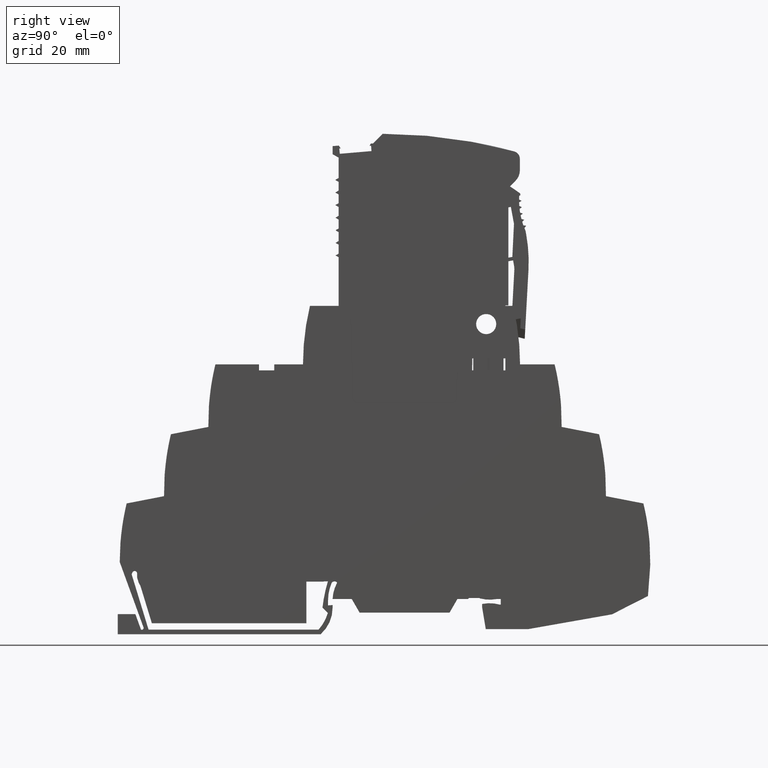
[diagram: clean part render]
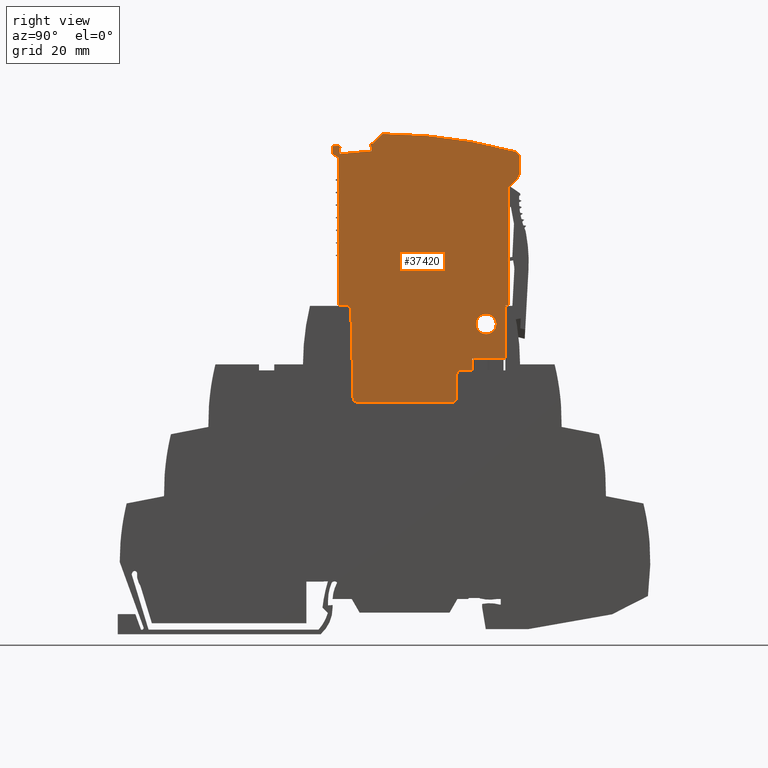
[diagram: same view with one face highlighted and labeled with its STEP entity id]
A machine part, right view. The second image highlights one B-rep face of the part: STEP entity #37420.
In plain terms, the highlighted planar face has unit normal (1, -0, 0).
Its self-contained STEP definition (entity closure, byte-faithful):
#4710=CARTESIAN_POINT('',(1.5027634443628,81.6300278559835,
6.30000004653682));
#4720=VERTEX_POINT('',#4710);
#4750=CARTESIAN_POINT('',(1.50276199735806,81.630026408979,
6.30000004653682));
#4760=DIRECTION('',(0.707106781186548,0.707106781186547,
8.99675992685931E-10));
#4770=VECTOR('',#4760,1.);
#4780=LINE('',#4750,#4770);
#4790=CARTESIAN_POINT('',(2.91213288443591,83.0393972960566,
6.30000004833));
#4800=VERTEX_POINT('',#4790);
#4810=EDGE_CURVE('',#4720,#4800,#4780,.T.);
#6490=CARTESIAN_POINT('',(0.82369244772057,47.7986343143926,
6.30000004567281));
#6500=VERTEX_POINT('',#6490);
#6530=CARTESIAN_POINT('',(0.823692453333029,47.7986349575081,
6.30000004567281));
#6540=DIRECTION('',(0.0087266347785965,0.999961922197761,
1.11032298385166E-11));
#6550=VECTOR('',#6540,1.);
#6560=LINE('',#6530,#6550);
#6570=CARTESIAN_POINT('',(0.91543323909314,58.310968153533,
6.30000004578954));
#6580=VERTEX_POINT('',#6570);
#6590=EDGE_CURVE('',#6500,#6580,#6560,.T.);
#7360=CARTESIAN_POINT('',(0.,47.7986343961721,6.3000000446248));
#7370=DIRECTION('',(-0.999999999999995,9.92840027691511E-8,
-1.27233440234887E-9));
#7380=VECTOR('',#7370,1.);
#7390=LINE('',#7360,#7380);
#7400=CARTESIAN_POINT('',(-5.65384003677915,47.798634957508,
6.30000003743122));
#7410=VERTEX_POINT('',#7400);
#7420=EDGE_CURVE('',#6500,#7410,#7390,.T.);
#8260=CARTESIAN_POINT('',(-5.69398692084287,45.4986345962374,
6.30000003738014));
#8270=VERTEX_POINT('',#8260);
#8300=CARTESIAN_POINT('',(-5.69398692008819,45.4986346930015,
6.30000003738014));
#8310=DIRECTION('',(0.0174525057061637,0.999847693423641,
2.22057155310626E-11));
#8320=VECTOR('',#8310,1.);
#8330=LINE('',#8300,#8320);
#8340=EDGE_CURVE('',#8270,#7410,#8330,.T.);
#13800=CARTESIAN_POINT('',(-32.2143223474418,87.6620689228971,
6.30000000363741));
#13810=VERTEX_POINT('',#13800);
#13840=CARTESIAN_POINT('',(-32.2143484577651,0.,6.30000000363738));
#13850=DIRECTION('',(2.97852008862565E-7,0.999999999999956,
3.78967331631682E-16));
#13860=VECTOR('',#13850,1.);
#13870=LINE('',#13840,#13860);
#13880=CARTESIAN_POINT('',(-32.2143310897266,58.3109665443096,
6.3000000036374));
#13890=VERTEX_POINT('',#13880);
#13900=EDGE_CURVE('',#13890,#13810,#13870,.T.);
#34770=CARTESIAN_POINT('',(0.,58.3109707920224,6.3000000446248));
#34780=DIRECTION('',(0.999999999999991,1.31857899599019E-7,
1.27233440234888E-9));
#34790=VECTOR('',#34780,1.);
#34800=LINE('',#34770,#34790);
#34810=CARTESIAN_POINT('',(-30.8831239423302,58.3109667198385,
6.30000000533114));
#34820=VERTEX_POINT('',#34810);
#34830=EDGE_CURVE('',#13890,#34820,#34800,.T.);
#35030=CARTESIAN_POINT('',(-13.0403049895551,96.0690412262468,
6.30000002803317));
#35040=DIRECTION('',(-1.27233440234888E-9,-1.17062898166327E-24,1.));
#35050=DIRECTION('',(0.999999999999995,9.92840025734579E-8,
1.27233440234887E-9));
#35060=AXIS2_PLACEMENT_3D('',#35030,#35040,#35050);
#35070=PLANE('',#35060);
#35080=CARTESIAN_POINT('',(-2.89964321690515,54.6030366982365,
6.30000004093548));
#35090=DIRECTION('',(-8.27874684295384E-18,1.10352364417225E-9,-1.));
#35100=DIRECTION('',(0.207911690818063,-0.978147600733741,
-1.07940900662129E-9));
#35110=AXIS2_PLACEMENT_3D('',#35080,#35090,#35100);
#35120=CIRCLE('',#35110,2.);
#35130=CARTESIAN_POINT('',(-0.89964321690515,54.6030366982365,
6.30000004093548));
#35140=VERTEX_POINT('',#35130);
#35150=CARTESIAN_POINT('',(-4.89964321690515,54.6030366982365,
6.30000004093548));
#35160=VERTEX_POINT('',#35150);
#35170=EDGE_CURVE('',#35140,#35160,#35120,.T.);
#35180=ORIENTED_EDGE('',*,*,#35170,.T.);
#35190=EDGE_CURVE('',#35160,#35140,#35120,.T.);
#35200=ORIENTED_EDGE('',*,*,#35190,.T.);
#35210=EDGE_LOOP('',(#35200,#35180));
#35220=FACE_BOUND('',#35210,.T.);
#35230=CARTESIAN_POINT('',(0.,92.2265074258215,6.3000000446248));
#35240=DIRECTION('',(0.996387745687969,0.0849203170204144,
1.26773841424566E-9));
#35250=VECTOR('',#35240,1.);
#35260=LINE('',#35230,#35250);
#35270=CARTESIAN_POINT('',(-26.0398510780883,90.007178235669,
6.3000000114934));
#35280=VERTEX_POINT('',#35270);
#35290=CARTESIAN_POINT('',(-25.7688273458872,90.0302770958849,
6.30000001183823));
#35300=VERTEX_POINT('',#35290);
#35310=EDGE_CURVE('',#35280,#35300,#35260,.T.);
#35320=ORIENTED_EDGE('',*,*,#35310,.T.);
#35330=CARTESIAN_POINT('',(-68.257012075395,0.,6.29999995777905));
#35340=DIRECTION('',(-0.424650721006602,-0.905357258295626,
-5.40297695472702E-10));
#35350=VECTOR('',#35340,1.);
#35360=LINE('',#35330,#35350);
#35370=CARTESIAN_POINT('',(-25.829789102938,90.4550313170049,
6.30000001176067));
#35380=VERTEX_POINT('',#35370);
#35390=EDGE_CURVE('',#35380,#35280,#35360,.T.);
#35400=ORIENTED_EDGE('',*,*,#35390,.T.);
#35410=CARTESIAN_POINT('',(-6.59696852790767,-259.01613861369,
6.30000003623125));
#35420=DIRECTION('',(4.2914011530532E-18,1.1035235845829E-9,-1.));
#35430=DIRECTION('',(-0.0544140920450259,0.99851845580686,
1.10188866539066E-9));
#35440=AXIS2_PLACEMENT_3D('',#35410,#35420,#35430);
#35450=CIRCLE('',#35440,350.);
#35460=CARTESIAN_POINT('',(-25.3835324039076,90.4793048726777,
6.30000042190771));
#35470=VERTEX_POINT('',#35460);
#35480=EDGE_CURVE('',#35380,#35470,#35450,.T.);
#35490=ORIENTED_EDGE('',*,*,#35480,.F.);
#35500=CARTESIAN_POINT('',(-23.7561712545598,92.1066555594288,
6.30000001439901));
#35510=DIRECTION('',(-0.707109054248472,-0.707104508117316,
-8.99679235216046E-10));
#35520=VECTOR('',#35510,1.);
#35530=LINE('',#35500,#35520);
#35540=CARTESIAN_POINT('',(-23.4620154295483,92.400809493259,
6.30000012500318));
#35550=VERTEX_POINT('',#35540);
#35560=EDGE_CURVE('',#35550,#35470,#35530,.T.);
#35570=ORIENTED_EDGE('',*,*,#35560,.T.);
#35580=CARTESIAN_POINT('',(-23.5582147547322,-7.59914423517946,
6.30000001465087));
#35590=DIRECTION('',(-5.04620731356756E-18,-1.10352358808745E-9,1.));
#35600=DIRECTION('',(0.262397378243297,0.96495990377375,
1.06485601669704E-9));
#35610=AXIS2_PLACEMENT_3D('',#35580,#35590,#35600);
#35620=CIRCLE('',#35610,100.);
#35630=CARTESIAN_POINT('',(2.68152306959731,88.8968461421956,
6.30000012113647));
#35640=VERTEX_POINT('',#35630);
#35650=EDGE_CURVE('',#35640,#35550,#35620,.T.);
#35660=ORIENTED_EDGE('',*,*,#35650,.T.);
#35670=CARTESIAN_POINT('',(2.28792700223234,87.449406286535,
6.30000004753581));
#35680=DIRECTION('',(4.25831752161686E-18,1.10352358519E-9,-1.));
#35690=DIRECTION('',(1.,0.,4.25831752161686E-18));
#35700=AXIS2_PLACEMENT_3D('',#35670,#35680,#35690);
#35710=CIRCLE('',#35700,1.5);
#35720=CARTESIAN_POINT('',(3.78793249072631,87.4460008193443,
6.30000004944432));
#35730=VERTEX_POINT('',#35720);
#35740=EDGE_CURVE('',#35640,#35730,#35710,.T.);
#35750=ORIENTED_EDGE('',*,*,#35740,.F.);
#35760=CARTESIAN_POINT('',(3.89822846849755,0.,6.30000004958465));
#35770=DIRECTION('',(-0.00126130284980064,0.999999204557244,
-1.60479886757853E-12));
#35780=VECTOR('',#35770,1.);
#35790=LINE('',#35760,#35780);
#35800=CARTESIAN_POINT('',(3.79081945887381,85.1571247960008,
6.30000004944799));
#35810=VERTEX_POINT('',#35800);
#35820=EDGE_CURVE('',#35810,#35730,#35790,.T.);
#35830=ORIENTED_EDGE('',*,*,#35820,.T.);
#35840=CARTESIAN_POINT('',(0.790812540876146,85.1607176396161,
6.30000004563098));
#35850=DIRECTION('',(-4.25831752161686E-18,-1.10352358519E-9,1.));
#35860=DIRECTION('',(1.,0.,4.25831752161686E-18));
#35870=AXIS2_PLACEMENT_3D('',#35840,#35850,#35860);
#35880=CIRCLE('',#35870,3.);
#35890=EDGE_CURVE('',#4800,#35810,#35880,.T.);
#35900=ORIENTED_EDGE('',*,*,#35890,.T.);
#35910=ORIENTED_EDGE('',*,*,#4810,.T.);
#35920=CARTESIAN_POINT('',(1.50275273455216,0.,6.3000000465368));
#35930=DIRECTION('',(1.48925771131792E-7,0.999999999999989,
1.89483374648265E-16));
#35940=VECTOR('',#35930,1.);
#35950=LINE('',#35920,#35940);
#35960=CARTESIAN_POINT('',(1.50276286556278,58.3109681826894,
6.30000004653682));
#35970=VERTEX_POINT('',#35960);
#35980=EDGE_CURVE('',#35970,#4720,#35950,.T.);
#35990=ORIENTED_EDGE('',*,*,#35980,.T.);
#36000=CARTESIAN_POINT('',(0.,58.3109681080889,6.3000000446248));
#36010=DIRECTION('',(0.999999999999999,4.96422109530492E-8,
1.27233440234888E-9));
#36020=VECTOR('',#36010,1.);
#36030=LINE('',#36000,#36020);
#36040=EDGE_CURVE('',#6580,#35970,#36030,.T.);
#36050=ORIENTED_EDGE('',*,*,#36040,.T.);
#36060=ORIENTED_EDGE('',*,*,#6590,.T.);
#36070=ORIENTED_EDGE('',*,*,#7420,.F.);
#36080=ORIENTED_EDGE('',*,*,#8340,.T.);
#36090=CARTESIAN_POINT('',(0.,45.4986339341759,6.3000000446248));
#36100=DIRECTION('',(0.999999999999995,-9.92840029634401E-8,
1.27233440234887E-9));
#36110=VECTOR('',#36100,1.);
#36120=LINE('',#36090,#36110);
#36130=CARTESIAN_POINT('',(-7.64297974787529,45.4986346930013,
6.30000003490037));
#36140=VERTEX_POINT('',#36130);
#36150=EDGE_CURVE('',#36140,#8270,#36120,.T.);
#36160=ORIENTED_EDGE('',*,*,#36150,.T.);
#36170=CARTESIAN_POINT('',(-7.64297924124064,44.3986346930014,
6.30000003490037));
#36180=DIRECTION('',(1.51572422815737E-21,8.68357828728422E-20,-1.));
#36190=DIRECTION('',(-0.999847695156387,0.0174524064375057,
1.88079096131566E-37));
#36200=AXIS2_PLACEMENT_3D('',#36170,#36180,#36190);
#36210=CIRCLE('',#36200,1.1);
#36220=CARTESIAN_POINT('',(-8.74281170591264,44.4178323400825,
6.30000003350102));
#36230=VERTEX_POINT('',#36220);
#36240=EDGE_CURVE('',#36230,#36140,#36210,.T.);
#36250=ORIENTED_EDGE('',*,*,#36240,.T.);
#36260=CARTESIAN_POINT('',(-8.82119367783118,39.9273321763251,
6.30000003340129));
#36270=DIRECTION('',(0.0174524064372837,0.999847695156391,
2.22053296847798E-11));
#36280=VECTOR('',#36270,1.);
#36290=LINE('',#36260,#36280);
#36300=CARTESIAN_POINT('',(-8.82119367783119,39.9273321763251,
6.30000003340129));
#36310=VERTEX_POINT('',#36300);
#36320=EDGE_CURVE('',#36310,#36230,#36290,.T.);
#36330=ORIENTED_EDGE('',*,*,#36320,.T.);
#36340=CARTESIAN_POINT('',(-9.72105660347197,39.9430393421184,
6.30000003225637));
#36350=DIRECTION('',(-4.25831783639269E-18,-2.79679695932552E-23,1.));
#36360=DIRECTION('',(6.56784454970232E-6,-0.999999999978432,0.));
#36370=AXIS2_PLACEMENT_3D('',#36340,#36350,#36360);
#36380=CIRCLE('',#36370,0.9);
#36390=CARTESIAN_POINT('',(-9.72105364794497,39.0430393421184,
6.30000003225637));
#36400=VERTEX_POINT('',#36390);
#36410=EDGE_CURVE('',#36400,#36310,#36380,.T.);
#36420=ORIENTED_EDGE('',*,*,#36410,.T.);
#36430=CARTESIAN_POINT('',(0.,39.0430393421184,6.3000000446248));
#36440=DIRECTION('',(1.,0.,1.27233440234888E-9));
#36450=VECTOR('',#36440,1.);
#36460=LINE('',#36430,#36450);
#36470=CARTESIAN_POINT('',(-28.4302587167585,39.0430393421184,
6.300000008452));
#36480=VERTEX_POINT('',#36470);
#36490=EDGE_CURVE('',#36480,#36400,#36460,.T.);
#36500=ORIENTED_EDGE('',*,*,#36490,.T.);
#36510=CARTESIAN_POINT('',(-28.4302616897223,39.9430393421183,
6.300000008452));
#36520=DIRECTION('',(-2.58997426526211E-21,9.89071268123087E-20,1.));
#36530=DIRECTION('',(-0.999657324975578,-0.026176948307079,
-3.76158192263132E-37));
#36540=AXIS2_PLACEMENT_3D('',#36510,#36520,#36530);
#36550=CIRCLE('',#36540,0.9);
#36560=CARTESIAN_POINT('',(-29.3299532822003,39.9194800886416,
6.30000000730729));
#36570=VERTEX_POINT('',#36560);
#36580=EDGE_CURVE('',#36570,#36480,#36550,.T.);
#36590=ORIENTED_EDGE('',*,*,#36580,.T.);
#36600=CARTESIAN_POINT('',(-29.7835008092065,57.2397613629776,
6.30000000673023));
#36610=DIRECTION('',(0.0261769483078747,-0.999657324975557,
3.33058605425129E-11));
#36620=VECTOR('',#36610,1.);
#36630=LINE('',#36600,#36620);
#36640=CARTESIAN_POINT('',(-29.7835008092064,57.2397613629773,
6.30000000533114));
#36650=VERTEX_POINT('',#36640);
#36660=EDGE_CURVE('',#36650,#36570,#36630,.T.);
#36670=ORIENTED_EDGE('',*,*,#36660,.T.);
#36680=CARTESIAN_POINT('',(-30.8831238666795,57.2109667198385,
6.30000000533114));
#36690=DIRECTION('',(4.25831775433271E-18,2.42245071722835E-26,-1.));
#36700=DIRECTION('',(-5.68875048078218E-9,1.,0.));
#36710=AXIS2_PLACEMENT_3D('',#36680,#36690,#36700);
#36720=CIRCLE('',#36710,1.10000000000001);
#36730=EDGE_CURVE('',#34820,#36650,#36720,.T.);
#36740=ORIENTED_EDGE('',*,*,#36730,.T.);
#36750=ORIENTED_EDGE('',*,*,#34830,.T.);
#36760=ORIENTED_EDGE('',*,*,#13900,.F.);
#36770=CARTESIAN_POINT('',(-33.1400135810732,88.1965173734466,
6.30000000245962));
#36780=DIRECTION('',(0.866025254858393,-0.50000025794739,
1.10187221873626E-9));
#36790=VECTOR('',#36780,1.);
#36800=LINE('',#36770,#36790);
#36810=CARTESIAN_POINT('',(-33.3900136670533,88.340855089668,
6.30000000214154));
#36820=VERTEX_POINT('',#36810);
#36830=EDGE_CURVE('',#36820,#13810,#36800,.T.);
#36840=ORIENTED_EDGE('',*,*,#36830,.T.);
#36850=CARTESIAN_POINT('',(-33.390039979555,0.,6.3000000021415));
#36860=DIRECTION('',(-2.97852014774502E-7,-0.999999999999956,
-3.78967358101462E-16));
#36870=VECTOR('',#36860,1.);
#36880=LINE('',#36850,#36870);
#36890=CARTESIAN_POINT('',(-33.3900131857319,89.9568299067438,
6.30000042133115));
#36900=VERTEX_POINT('',#36890);
#36910=EDGE_CURVE('',#36900,#36820,#36880,.T.);
#36920=ORIENTED_EDGE('',*,*,#36910,.T.);
#36930=CARTESIAN_POINT('',(-6.59696852790767,-259.01613861369,
6.30000003623125));
#36940=DIRECTION('',(-4.29544390782417E-18,-1.10352358468662E-9,1.));
#36950=DIRECTION('',(-0.0735550024569542,0.997291161904866,
1.10053431764559E-9));
#36960=AXIS2_PLACEMENT_3D('',#36930,#36940,#36950);
#36970=CIRCLE('',#36960,350.);
#36980=CARTESIAN_POINT('',(-32.1707224971671,90.0483011505456,
6.30000042143209));
#36990=VERTEX_POINT('',#36980);
#37000=EDGE_CURVE('',#36990,#36900,#36970,.T.);
#37010=ORIENTED_EDGE('',*,*,#37000,.T.);
#37020=CARTESIAN_POINT('',(30.5811420122174,0.,6.30000008353424));
#37030=DIRECTION('',(-0.571737024681002,0.820436941275145,
-7.27440663261802E-10));
#37040=VECTOR('',#37030,1.);
#37050=LINE('',#37020,#37040);
#37060=CARTESIAN_POINT('',(-31.7999560166452,89.5162549403557,
6.30000000416462));
#37070=VERTEX_POINT('',#37060);
#37080=EDGE_CURVE('',#37070,#36990,#37050,.T.);
#37090=ORIENTED_EDGE('',*,*,#37080,.T.);
#37100=CARTESIAN_POINT('',(0.,92.2265074076855,6.3000000446248));
#37110=DIRECTION('',(-0.99638774568797,-0.0849203170203965,
-1.26773840730676E-9));
#37120=VECTOR('',#37110,1.);
#37130=LINE('',#37100,#37120);
#37140=CARTESIAN_POINT('',(-32.0709798358291,89.4931560727262,
6.30000000381979));
#37150=VERTEX_POINT('',#37140);
#37160=EDGE_CURVE('',#37070,#37150,#37130,.T.);
#37170=ORIENTED_EDGE('',*,*,#37160,.F.);
#37180=CARTESIAN_POINT('',(-32.0225309487305,88.9246952015105,
6.30000000388143));
#37190=DIRECTION('',(-0.0849203170204,0.99638774568797,
-1.08047273260181E-10));
#37200=VECTOR('',#37190,1.);
#37210=LINE('',#37180,#37200);
#37220=CARTESIAN_POINT('',(-31.9800707902202,88.426501328666,
6.30000000393545));
#37230=VERTEX_POINT('',#37220);
#37240=EDGE_CURVE('',#37230,#37150,#37210,.T.);
#37250=ORIENTED_EDGE('',*,*,#37240,.T.);
#37260=CARTESIAN_POINT('',(-26.176112171587,88.92116217531,
6.30000001132003));
#37270=DIRECTION('',(-0.99638774568797,-0.0849203170204034,
-1.26773833996995E-9));
#37280=VECTOR('',#37270,1.);
#37290=LINE('',#37260,#37280);
#37300=CARTESIAN_POINT('',(-25.6779182987438,88.9636223338201,
6.3000000119539));
#37310=VERTEX_POINT('',#37300);
#37320=EDGE_CURVE('',#37310,#37230,#37290,.T.);
#37330=ORIENTED_EDGE('',*,*,#37320,.T.);
#37340=CARTESIAN_POINT('',(-25.7688273458873,90.030277095885,
6.30000001183823));
#37350=DIRECTION('',(0.0849203170204188,-0.996387745687968,
1.08046948391849E-10));
#37360=VECTOR('',#37350,1.);
#37370=LINE('',#37340,#37360);
#37380=EDGE_CURVE('',#35300,#37310,#37370,.T.);
#37390=ORIENTED_EDGE('',*,*,#37380,.T.);
#37400=EDGE_LOOP('',(#37390,#37330,#37250,#37170,#37090,#37010,#36920,
#36840,#36760,#36750,#36740,#36670,#36590,#36500,#36420,#36330,#36250,
#36160,#36080,#36070,#36060,#36050,#35990,#35910,#35900,#35830,#35750,
#35660,#35570,#35490,#35400,#35320));
#37410=FACE_OUTER_BOUND('',#37400,.T.);
#37420=ADVANCED_FACE('',(#35220,#37410),#35070,.T.);